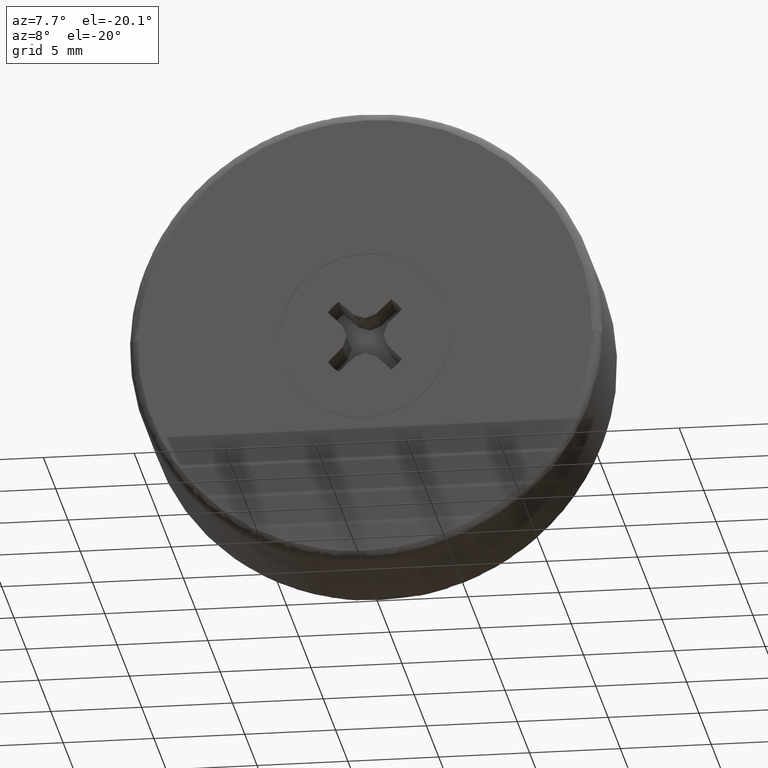
[diagram: clean part render]
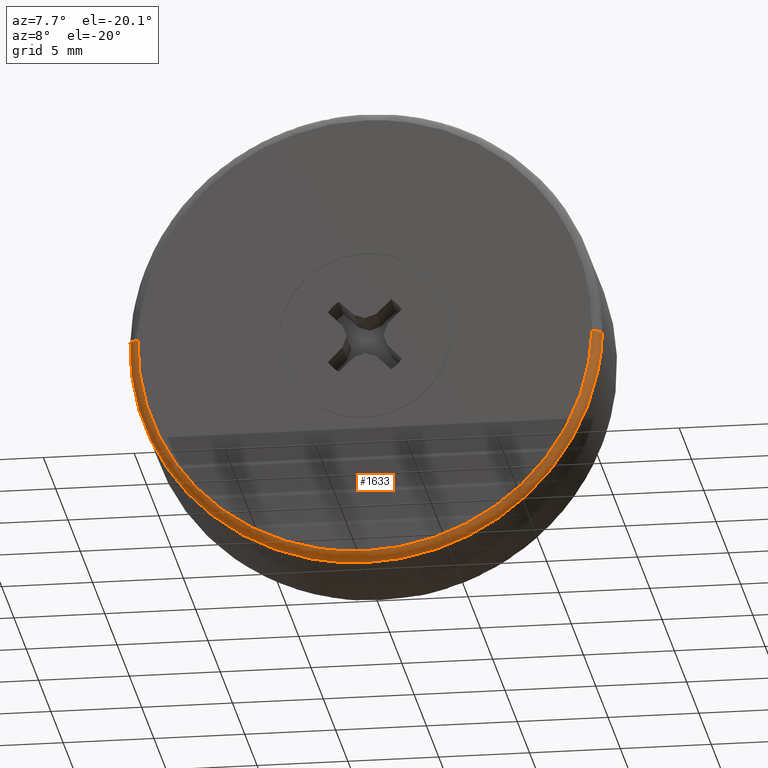
[diagram: same view with one face highlighted and labeled with its STEP entity id]
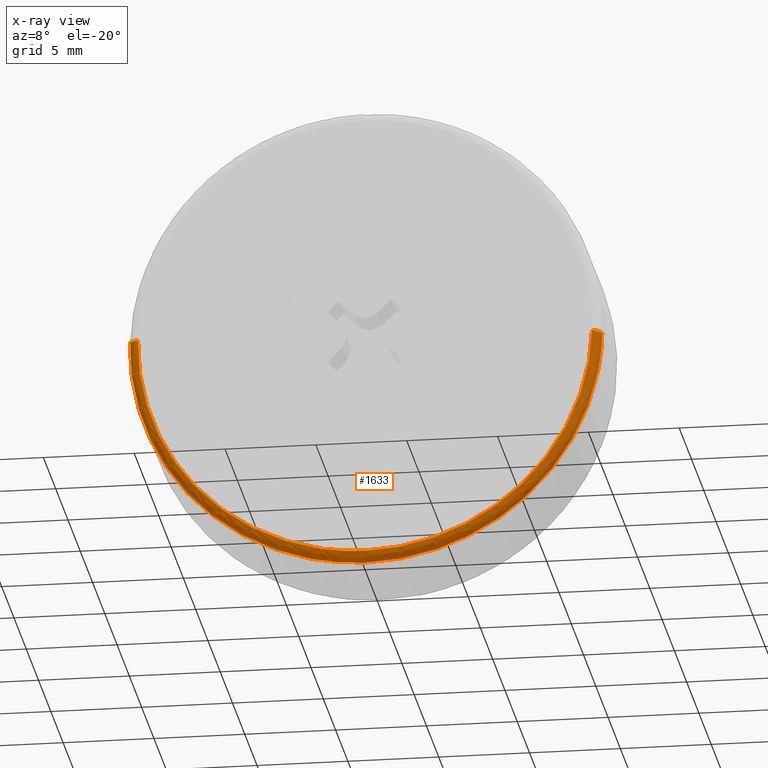
[diagram: x-ray of the same camera — body ghosted, the highlighted face saturated]
A machine part, auxiliary view. The second image highlights one B-rep face of the part: STEP entity #1633.
The next image is the same camera in x-ray: the body ghosted, the highlighted face saturated — about 0% of this face is hidden behind the body in this view.
In plain terms, the highlighted face is a freeform B-spline surface patch.
Its self-contained STEP definition (entity closure, byte-faithful):
#1330=CARTESIAN_POINT('',(-12.995894460682891,0.499999999983818,0.326691240763544));
#1331=VERTEX_POINT('',#1330);
#1421=CARTESIAN_POINT('',(12.995894460682891,0.499999999983818,-0.326691240763541));
#1422=VERTEX_POINT('',#1421);
#1438=CARTESIAN_POINT('',(0.0,0.500000000000000,-13.0));
#1439=VERTEX_POINT('',#1438);
#1440=CARTESIAN_POINT('',(0.0,0.500000000000000,-13.0));
#1441=CARTESIAN_POINT('',(12.677312390348131,0.500000000000000,-13.000000000000002));
#1442=CARTESIAN_POINT('',(12.995894460682891,0.499999999983818,-0.326691240763541));
#1450=(BOUNDED_CURVE()B_SPLINE_CURVE(2,(#1440,#1441,#1442),.UNSPECIFIED.,.F.,.U.)B_SPLINE_CURVE_WITH_KNOTS((3,3),(0.0,0.245579891769803),.UNSPECIFIED.)CURVE()GEOMETRIC_REPRESENTATION_ITEM()RATIONAL_B_SPLINE_CURVE((1.0,0.712285260094732,0.989826157681567))REPRESENTATION_ITEM(''));
#1451=EDGE_CURVE('',#1439,#1422,#1450,.T.);
#1453=CARTESIAN_POINT('',(-12.995894460682891,0.499999999983818,0.326691240763544));
#1454=CARTESIAN_POINT('',(-13.0,0.500000000000000,0.163371417604091));
#1455=CARTESIAN_POINT('',(-13.0,0.500000000000000,-1.904718E-016));
#1456=CARTESIAN_POINT('',(-13.0,0.500000000000000,-13.0));
#1457=CARTESIAN_POINT('',(0.0,0.500000000000000,-13.0));
#1465=(BOUNDED_CURVE()B_SPLINE_CURVE(2,(#1453,#1454,#1455,#1456,#1457),.UNSPECIFIED.,.F.,.U.)B_SPLINE_CURVE_WITH_KNOTS((3,2,3),(0.745579891769803,0.750000000000000,1.0),.UNSPECIFIED.)CURVE()GEOMETRIC_REPRESENTATION_ITEM()RATIONAL_B_SPLINE_CURVE((0.989826157681567,0.994821521091815,1.0,0.707106781186547,1.0))REPRESENTATION_ITEM(''));
#1466=EDGE_CURVE('',#1331,#1439,#1465,.T.);
#1546=CARTESIAN_POINT('',(-12.994677997316831,0.534862113265929,0.326660661265562));
#1547=CARTESIAN_POINT('',(-13.321338658582402,0.534862113265929,-12.668017336051268));
#1548=CARTESIAN_POINT('',(-0.326660661265566,0.534862113265929,-12.994677997316831));
#1549=CARTESIAN_POINT('',(12.668017336051268,0.534862113265929,-13.321338658582402));
#1550=CARTESIAN_POINT('',(12.994677997316831,0.534862113265929,-0.326660661265567));
#1551=CARTESIAN_POINT('',(-13.034751864035522,-0.038668351976753,0.327668039501829));
#1552=CARTESIAN_POINT('',(-13.362419903537354,-0.038668351976753,-12.707083824533688));
#1553=CARTESIAN_POINT('',(-0.327668039501833,-0.038668351976753,-13.034751864035522));
#1554=CARTESIAN_POINT('',(12.707083824533688,-0.038668351976753,-13.362419903537354));
#1555=CARTESIAN_POINT('',(13.034751864035522,-0.038668351976753,-0.327668039501834));
#1556=CARTESIAN_POINT('',(-12.461387591115720,0.001203855233517,0.313254788740502));
#1557=CARTESIAN_POINT('',(-12.774642379856216,0.001203855233517,-12.148132802375210));
#1558=CARTESIAN_POINT('',(-0.313254788740505,0.001203855233517,-12.461387591115720));
#1559=CARTESIAN_POINT('',(12.148132802375205,0.001203855233517,-12.774642379856216));
#1560=CARTESIAN_POINT('',(12.461387591115720,0.001203855233517,-0.313254788740506));
#1568=(BOUNDED_SURFACE()B_SPLINE_SURFACE(2,2,((#1546,#1551,#1556),(#1547,#1552,#1557),(#1548,#1553,#1558),(#1549,#1554,#1559),(#1550,#1555,#1560)),.UNSPECIFIED.,.F.,.F.,.U.)B_SPLINE_SURFACE_WITH_KNOTS((3,2,3),(3,3),(0.0,21.537089104185149,43.074178208370313),(0.0,0.911185718938869),.UNSPECIFIED.)GEOMETRIC_REPRESENTATION_ITEM()RATIONAL_B_SPLINE_SURFACE(((0.910892958713044,0.599412743202372,0.915966991455113),(0.644098588041071,0.423848815448028,0.647686471000951),(0.910892958713044,0.599412743202372,0.915966991455113),(0.644098588041071,0.423848815448028,0.647686471000951),(0.910892958713044,0.599412743202372,0.915966991455113)))REPRESENTATION_ITEM('')SURFACE());
#1569=CARTESIAN_POINT('',(-12.496052366380470,-1.054353E-015,0.314126193058411));
#1570=VERTEX_POINT('',#1569);
#1571=CARTESIAN_POINT('',(0.0,-2.296137E-015,-12.500000000000000));
#1572=VERTEX_POINT('',#1571);
#1573=CARTESIAN_POINT('',(-12.496052366380475,-1.054353E-015,0.314126193058411));
#1574=CARTESIAN_POINT('',(-12.500000000000000,-2.296137E-015,0.157087901550407));
#1575=CARTESIAN_POINT('',(-12.500000000000000,-2.296137E-015,-1.904718E-016));
#1576=CARTESIAN_POINT('',(-12.499999999999998,-2.296137E-015,-12.499999999999998));
#1577=CARTESIAN_POINT('',(0.0,-2.296137E-015,-12.500000000000000));
#1585=(BOUNDED_CURVE()B_SPLINE_CURVE(2,(#1573,#1574,#1575,#1576,#1577),.UNSPECIFIED.,.F.,.U.)B_SPLINE_CURVE_WITH_KNOTS((3,2,3),(0.745579891769579,0.750000000000000,1.0),.UNSPECIFIED.)CURVE()GEOMETRIC_REPRESENTATION_ITEM()RATIONAL_B_SPLINE_CURVE((0.989826157681060,0.994821521091553,1.0,0.707106781186547,1.0))REPRESENTATION_ITEM(''));
#1586=EDGE_CURVE('',#1570,#1572,#1585,.T.);
#1587=ORIENTED_EDGE('',*,*,#1586,.F.);
#1588=CARTESIAN_POINT('',(-12.995894460682900,0.499999999983819,0.326691240763544));
#1589=CARTESIAN_POINT('',(-12.995894460650545,6.790697E-010,0.326691240762575));
#1590=CARTESIAN_POINT('',(-12.496052366380475,-1.054353E-015,0.314126193058411));
#1598=(BOUNDED_CURVE()B_SPLINE_CURVE(2,(#1588,#1589,#1590),.UNSPECIFIED.,.F.,.U.)B_SPLINE_CURVE_WITH_KNOTS((3,3),(-1.723441281918127,-0.263586880333454),.UNSPECIFIED.)CURVE()GEOMETRIC_REPRESENTATION_ITEM()RATIONAL_B_SPLINE_CURVE((0.883897567115177,0.626638727497196,0.888510408558263))REPRESENTATION_ITEM(''));
#1599=EDGE_CURVE('',#1331,#1570,#1598,.T.);
#1600=ORIENTED_EDGE('',*,*,#1599,.F.);
#1601=ORIENTED_EDGE('',*,*,#1466,.T.);
#1602=ORIENTED_EDGE('',*,*,#1451,.T.);
#1603=CARTESIAN_POINT('',(12.496052366380470,-1.062163E-015,-0.314126193058408));
#1604=VERTEX_POINT('',#1603);
#1605=CARTESIAN_POINT('',(12.995894460682898,0.499999999983818,-0.326691240763541));
#1606=CARTESIAN_POINT('',(12.995894460650543,6.790686E-010,-0.326691240762573));
#1607=CARTESIAN_POINT('',(12.496052366380464,-1.062163E-015,-0.314126193058408));
#1615=(BOUNDED_CURVE()B_SPLINE_CURVE(2,(#1605,#1606,#1607),.UNSPECIFIED.,.F.,.U.)B_SPLINE_CURVE_WITH_KNOTS((3,3),(-1.723441281918127,-0.263586880333452),.UNSPECIFIED.)CURVE()GEOMETRIC_REPRESENTATION_ITEM()RATIONAL_B_SPLINE_CURVE((0.883897567115177,0.626638727497196,0.888510408558263))REPRESENTATION_ITEM(''));
#1616=EDGE_CURVE('',#1422,#1604,#1615,.T.);
#1617=ORIENTED_EDGE('',*,*,#1616,.T.);
#1618=CARTESIAN_POINT('',(0.0,-2.296137E-015,-12.500000000000000));
#1619=CARTESIAN_POINT('',(12.189723452242188,-2.296137E-015,-12.499999999999998));
#1620=CARTESIAN_POINT('',(12.496052366380466,-1.062163E-015,-0.314126193058408));
#1628=(BOUNDED_CURVE()B_SPLINE_CURVE(2,(#1618,#1619,#1620),.UNSPECIFIED.,.F.,.U.)B_SPLINE_CURVE_WITH_KNOTS((3,3),(0.0,0.245579891769579),.UNSPECIFIED.)CURVE()GEOMETRIC_REPRESENTATION_ITEM()RATIONAL_B_SPLINE_CURVE((1.0,0.712285260094995,0.989826157681060))REPRESENTATION_ITEM(''));
#1629=EDGE_CURVE('',#1572,#1604,#1628,.T.);
#1630=ORIENTED_EDGE('',*,*,#1629,.F.);
#1631=EDGE_LOOP('',(#1587,#1600,#1601,#1602,#1617,#1630));
#1632=FACE_OUTER_BOUND('',#1631,.T.);
#1633=ADVANCED_FACE('',(#1632),#1568,.T.);